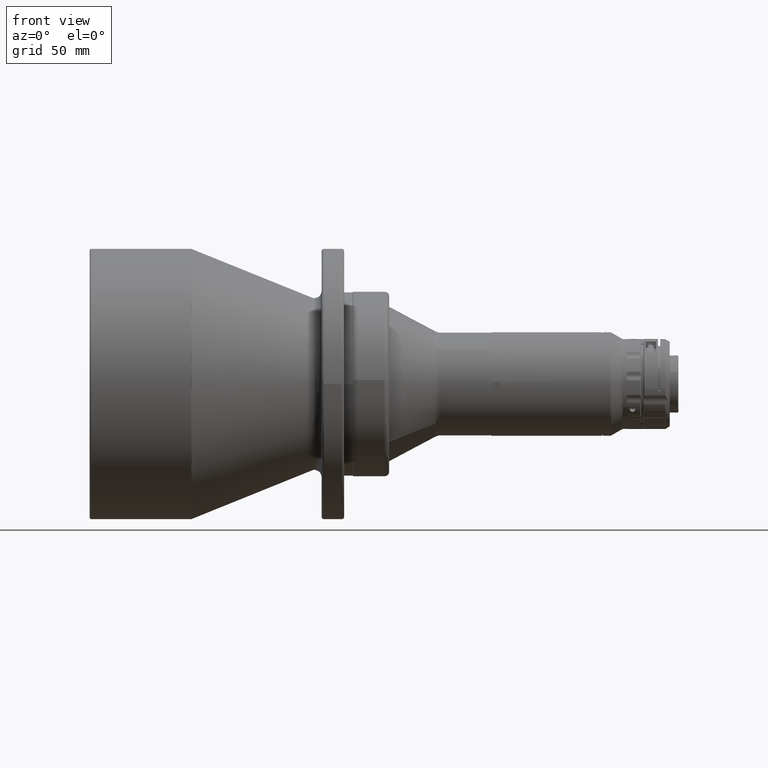
[diagram: clean part render]
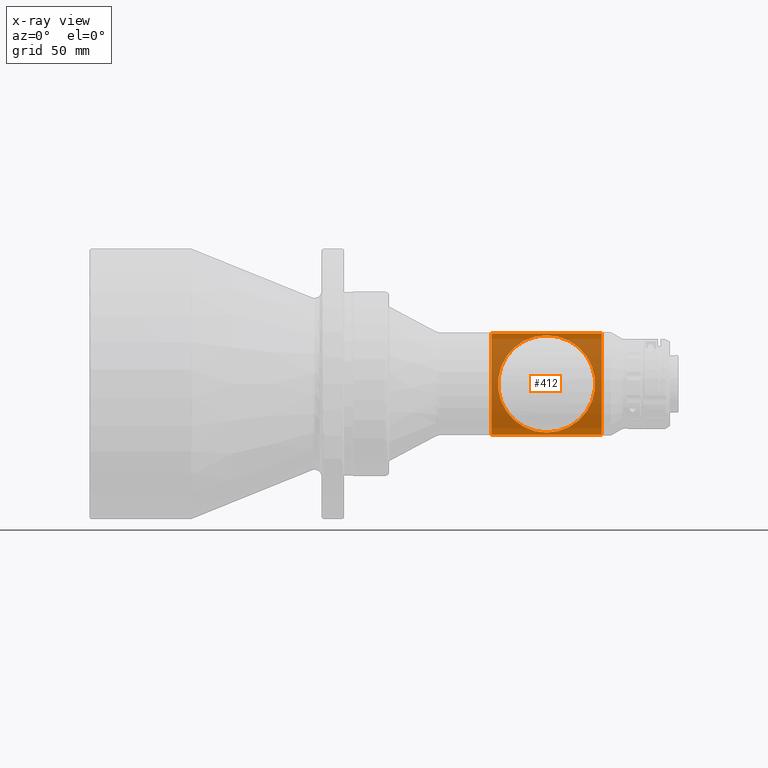
[diagram: x-ray — body ghosted, one internal face saturated and labeled with its STEP entity id]
A machine part, front view, then the same camera in x-ray: the body is ghosted and one INTERNAL B-rep face — a face not visible from any outside direction — is saturated and labeled: STEP entity #412.
In plain terms, the highlighted planar face has unit normal (0, -1, 0).
Its self-contained STEP definition (entity closure, byte-faithful):
#26 = AXIS2_PLACEMENT_3D ( 'NONE', #12016, #3004, #6024 ) ;
#412 = ADVANCED_FACE ( 'NONE', ( #10744, #5558 ), #900, .F. ) ;
#746 = DIRECTION ( 'NONE',  ( -0.0000000000000000000, -0.0000000000000000000, 1.000000000000000000 ) ) ;
#830 = ORIENTED_EDGE ( 'NONE', *, *, #2148, .T. ) ;
#900 = PLANE ( 'NONE',  #10316 ) ;
#936 = ORIENTED_EDGE ( 'NONE', *, *, #10206, .T. ) ;
#1504 = LINE ( 'NONE', #12401, #3163 ) ;
#2058 = CARTESIAN_POINT ( 'NONE',  ( 227.4400000000543700, 22.99999999996375200, 22.49999999996374500 ) ) ;
#2148 = EDGE_CURVE ( 'NONE', #3023, #9478, #16202, .T. ) ;
#2491 = ORIENTED_EDGE ( 'NONE', *, *, #13601, .F. ) ;
#3004 = DIRECTION ( 'NONE',  ( -0.0000000000000000000, 1.000000000000000000, -0.0000000000000000000 ) ) ;
#3023 = VERTEX_POINT ( 'NONE', #13138 ) ;
#3163 = VECTOR ( 'NONE', #6237, 1000.000000000000000 ) ;
#3212 = VERTEX_POINT ( 'NONE', #12323 ) ;
#3236 = VECTOR ( 'NONE', #7466, 1000.000000000000000 ) ;
#3670 = CIRCLE ( 'NONE', #26, 21.59078687765986300 ) ;
#3705 = DIRECTION ( 'NONE',  ( 0.0000000000000000000, -1.000000000000000000, 0.0000000000000000000 ) ) ;
#4661 = DIRECTION ( 'NONE',  ( 0.0000000000000000000, 0.0000000000000000000, -1.000000000000000000 ) ) ;
#5136 = CARTESIAN_POINT ( 'NONE',  ( 227.4400000000000000, 23.00000000000000000, 0.0000000000000000000 ) ) ;
#5558 = FACE_OUTER_BOUND ( 'NONE', #11235, .T. ) ;
#6024 = DIRECTION ( 'NONE',  ( 0.0000000000000000000, 0.0000000000000000000, -1.000000000000000000 ) ) ;
#6237 = DIRECTION ( 'NONE',  ( 1.000000000000000000, 0.0000000000000000000, 0.0000000000000000000 ) ) ;
#6305 = CARTESIAN_POINT ( 'NONE',  ( 202.9381469618720100, 23.00000000000000000, 0.0000000000000000000 ) ) ;
#6580 = CIRCLE ( 'NONE', #10329, 21.59078687765986300 ) ;
#6840 = CARTESIAN_POINT ( 'NONE',  ( 178.4400000000000300, 23.00000000000000000, 0.0000000000000000000 ) ) ;
#7466 = DIRECTION ( 'NONE',  ( -1.000000000000000000, 0.0000000000000000000, 0.0000000000000000000 ) ) ;
#7866 = ORIENTED_EDGE ( 'NONE', *, *, #16765, .F. ) ;
#8707 = CARTESIAN_POINT ( 'NONE',  ( 178.4400000000000300, 23.00000000000000000, 22.50000000000906300 ) ) ;
#8747 = ORIENTED_EDGE ( 'NONE', *, *, #14211, .T. ) ;
#9038 = CARTESIAN_POINT ( 'NONE',  ( 202.9400000000000000, 23.00000000000000000, -22.50000000000000000 ) ) ;
#9270 = DIRECTION ( 'NONE',  ( -0.0000000000000000000, 1.000000000000000000, -0.0000000000000000000 ) ) ;
#9292 = EDGE_LOOP ( 'NONE', ( #7866, #15352 ) ) ;
#9381 = VERTEX_POINT ( 'NONE', #17574 ) ;
#9478 = VERTEX_POINT ( 'NONE', #17837 ) ;
#9696 = DIRECTION ( 'NONE',  ( -1.000000000000000000, 0.0000000000000000000, 0.0000000000000000000 ) ) ;
#10206 = EDGE_CURVE ( 'NONE', #9478, #12510, #19278, .T. ) ;
#10316 = AXIS2_PLACEMENT_3D ( 'NONE', #14240, #3705, #9696 ) ;
#10329 = AXIS2_PLACEMENT_3D ( 'NONE', #6305, #9270, #4661 ) ;
#10744 = FACE_BOUND ( 'NONE', #9292, .T. ) ;
#11235 = EDGE_LOOP ( 'NONE', ( #936, #8747, #2491, #830 ) ) ;
#12016 = CARTESIAN_POINT ( 'NONE',  ( 202.9381469618720100, 23.00000000000000000, 0.0000000000000000000 ) ) ;
#12190 = EDGE_CURVE ( 'NONE', #3212, #9381, #3670, .T. ) ;
#12323 = CARTESIAN_POINT ( 'NONE',  ( 202.9381469618720100, 23.00000000000000000, 21.59078687765986300 ) ) ;
#12401 = CARTESIAN_POINT ( 'NONE',  ( 202.9400000000000000, 23.00000000000000000, 22.50000000000000000 ) ) ;
#12510 = VERTEX_POINT ( 'NONE', #8707 ) ;
#13138 = CARTESIAN_POINT ( 'NONE',  ( 227.4399999999637600, 22.99999999996375200, -22.50000000005437100 ) ) ;
#13575 = VERTEX_POINT ( 'NONE', #2058 ) ;
#13601 = EDGE_CURVE ( 'NONE', #3023, #13575, #15899, .T. ) ;
#14211 = EDGE_CURVE ( 'NONE', #12510, #13575, #1504, .T. ) ;
#14240 = CARTESIAN_POINT ( 'NONE',  ( 227.4400000000000000, 23.00000000000000000, 22.50000000000000000 ) ) ;
#15352 = ORIENTED_EDGE ( 'NONE', *, *, #12190, .F. ) ;
#15499 = VECTOR ( 'NONE', #17399, 1000.000000000000000 ) ;
#15899 = LINE ( 'NONE', #5136, #16124 ) ;
#16124 = VECTOR ( 'NONE', #746, 1000.000000000000000 ) ;
#16202 = LINE ( 'NONE', #9038, #3236 ) ;
#16765 = EDGE_CURVE ( 'NONE', #9381, #3212, #6580, .T. ) ;
#17399 = DIRECTION ( 'NONE',  ( 0.0000000000000000000, 0.0000000000000000000, 1.000000000000000000 ) ) ;
#17574 = CARTESIAN_POINT ( 'NONE',  ( 202.9381469618720100, 23.00000000000000000, -21.59078687765986300 ) ) ;
#17837 = CARTESIAN_POINT ( 'NONE',  ( 178.4399999999456600, 22.99999999996375200, -22.49999999996374500 ) ) ;
#19278 = LINE ( 'NONE', #6840, #15499 ) ;